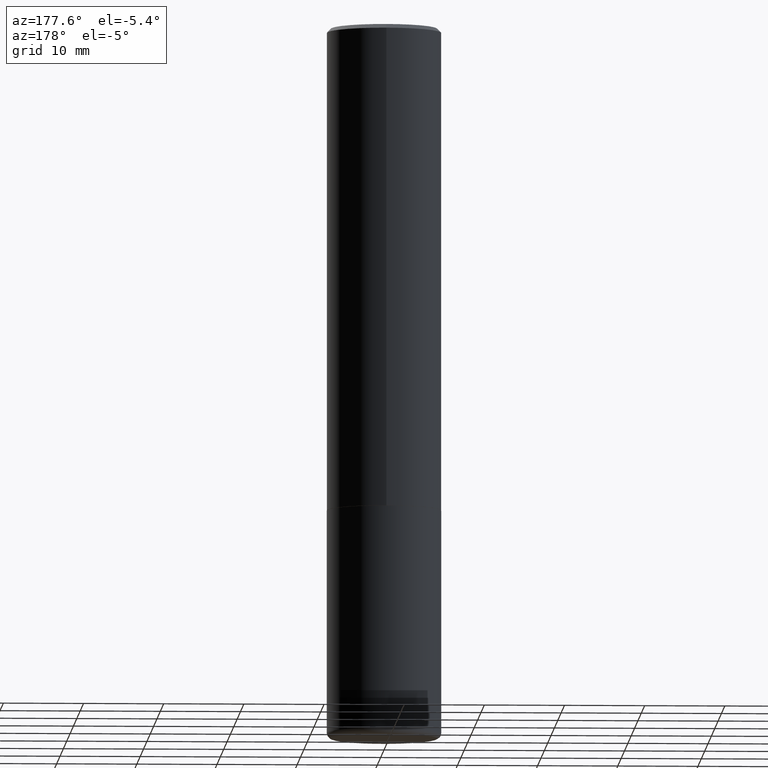
[diagram: clean part render]
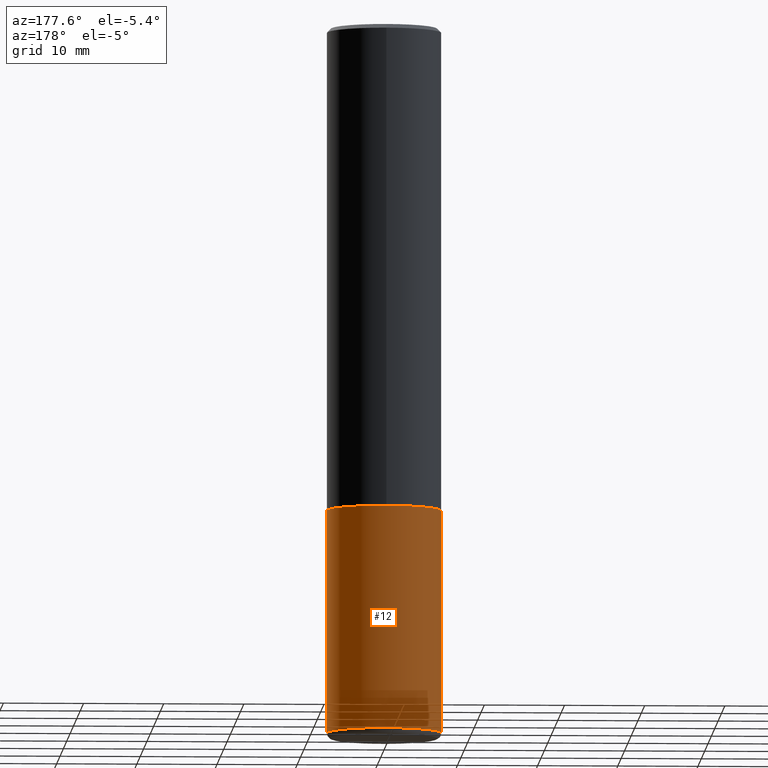
[diagram: same view with one face highlighted and labeled with its STEP entity id]
A machine part, auxiliary view. The second image highlights one B-rep face of the part: STEP entity #12.
In plain terms, the highlighted cylindrical surface (partial cylindrical patch) has radius 7.1437 mm, axis along (-0, 0, 1).
Its self-contained STEP definition (entity closure, byte-faithful):
#1 = ORIENTED_EDGE ( 'NONE', *, *, #41, .F. ) ;
#2 = EDGE_CURVE ( 'NONE', #405, #361, #144, .T. ) ;
#11 = CARTESIAN_POINT ( 'NONE',  ( 8.485776757462424574E-29, -1.211544024578571439E-14, -3.469999999999999751 ) ) ;
#12 = ADVANCED_FACE ( 'NONE', ( #136 ), #211, .T. ) ;
#20 = DIRECTION ( 'NONE',  ( -2.445468806185136877E-29, 3.491481338843145188E-15, 1.000000000000000000 ) ) ;
#33 = EDGE_LOOP ( 'NONE', ( #401, #358, #1, #192 ) ) ;
#41 = EDGE_CURVE ( 'NONE', #67, #361, #307, .T. ) ;
#43 = DIRECTION ( 'NONE',  ( -2.445468806185136597E-29, 3.491481338843145583E-15, 1.000000000000000000 ) ) ;
#52 = CARTESIAN_POINT ( 'NONE',  ( 0.2812500000000000000, -1.025622643285173184E-14, -2.374999999999999556 ) ) ;
#67 = VERTEX_POINT ( 'NONE', #52 ) ;
#72 = DIRECTION ( 'NONE',  ( 1.000000000000000000, -6.982962677686266711E-15, 0.000000000000000000 ) ) ;
#108 = DIRECTION ( 'NONE',  ( 1.000000000000000000, -6.982962677686269866E-15, 0.000000000000000000 ) ) ;
#112 = CARTESIAN_POINT ( 'NONE',  ( 0.000000000000000000, 0.000000000000000000, 0.000000000000000000 ) ) ;
#121 = CARTESIAN_POINT ( 'NONE',  ( -0.2812499999999998335, -1.011703880146043420E-14, -3.469999999999999751 ) ) ;
#129 = AXIS2_PLACEMENT_3D ( 'NONE', #11, #43, #108 ) ;
#136 = FACE_OUTER_BOUND ( 'NONE', #33, .T. ) ;
#144 = LINE ( 'NONE', #176, #290 ) ;
#153 = EDGE_CURVE ( 'NONE', #402, #405, #190, .T. ) ;
#155 = AXIS2_PLACEMENT_3D ( 'NONE', #267, #412, #72 ) ;
#168 = DIRECTION ( 'NONE',  ( -2.445468806185136597E-29, 3.491481338843145583E-15, 1.000000000000000000 ) ) ;
#176 = CARTESIAN_POINT ( 'NONE',  ( -0.2812500000000000000, 1.998401444325281773E-15, -1.383450494134192269E-29 ) ) ;
#181 = AXIS2_PLACEMENT_3D ( 'NONE', #112, #168, #365 ) ;
#190 = CIRCLE ( 'NONE', #129, 0.2812500000000000000 ) ;
#192 = ORIENTED_EDGE ( 'NONE', *, *, #300, .F. ) ;
#209 = DIRECTION ( 'NONE',  ( -2.445468806185136877E-29, 3.491481338843145188E-15, 1.000000000000000000 ) ) ;
#211 = CYLINDRICAL_SURFACE ( 'NONE', #181, 0.2812500000000000000 ) ;
#239 = VECTOR ( 'NONE', #209, 39.37007874015748143 ) ;
#254 = CARTESIAN_POINT ( 'NONE',  ( 0.2812499999999998335, -1.407939849888497612E-14, -3.469999999999999751 ) ) ;
#262 = CARTESIAN_POINT ( 'NONE',  ( -0.2812500000000000000, -8.205452768443809695E-15, -2.374999999999999556 ) ) ;
#267 = CARTESIAN_POINT ( 'NONE',  ( 5.807988414689698296E-29, -8.292268179752468540E-15, -2.374999999999999556 ) ) ;
#281 = CARTESIAN_POINT ( 'NONE',  ( 0.2812500000000000000, -1.963958253099262512E-15, 1.371424718192607012E-29 ) ) ;
#290 = VECTOR ( 'NONE', #20, 39.37007874015748143 ) ;
#300 = EDGE_CURVE ( 'NONE', #402, #67, #311, .T. ) ;
#307 = CIRCLE ( 'NONE', #155, 0.2812500000000000000 ) ;
#311 = LINE ( 'NONE', #281, #239 ) ;
#358 = ORIENTED_EDGE ( 'NONE', *, *, #2, .T. ) ;
#361 = VERTEX_POINT ( 'NONE', #262 ) ;
#365 = DIRECTION ( 'NONE',  ( 1.000000000000000000, -6.982962677686266711E-15, 4.876176775795935793E-29 ) ) ;
#401 = ORIENTED_EDGE ( 'NONE', *, *, #153, .T. ) ;
#402 = VERTEX_POINT ( 'NONE', #254 ) ;
#405 = VERTEX_POINT ( 'NONE', #121 ) ;
#412 = DIRECTION ( 'NONE',  ( -2.445468806185136597E-29, 3.491481338843145583E-15, 1.000000000000000000 ) ) ;